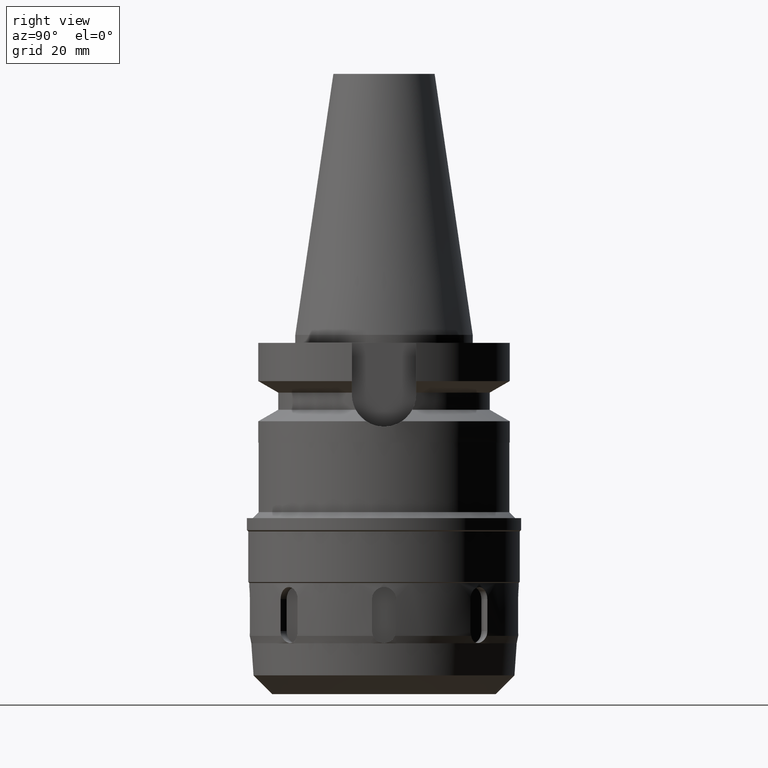
[diagram: clean part render]
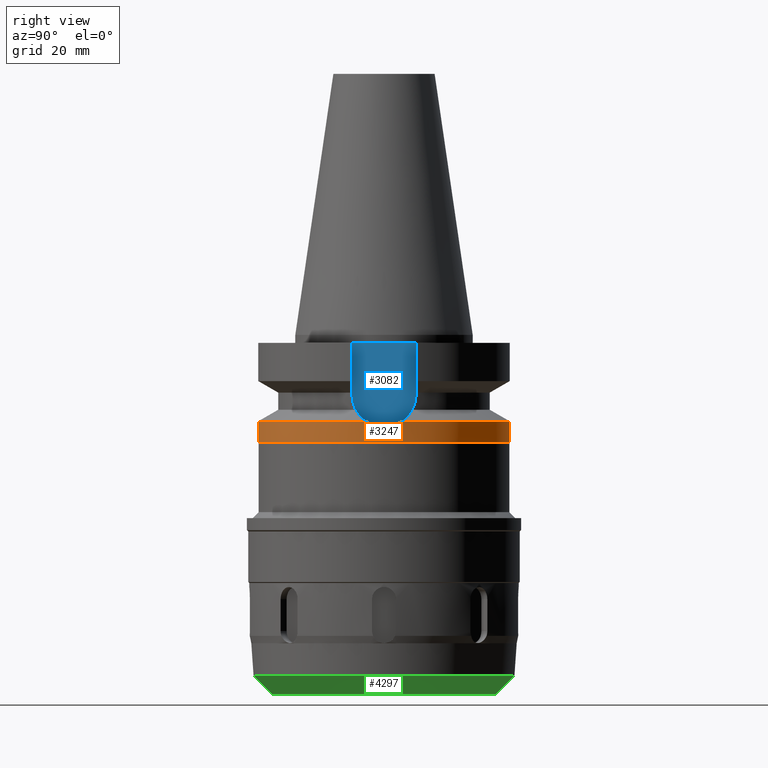
[diagram: same view with three faces highlighted in distinct colors, each labeled with its STEP entity id]
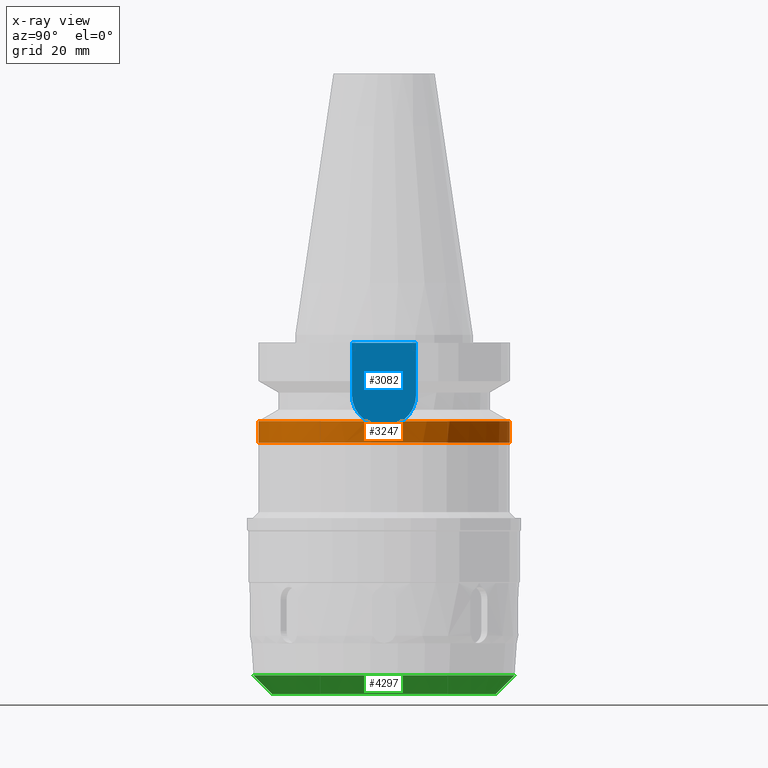
[diagram: x-ray of the same camera — body ghosted, the three highlighted faces saturated]
A machine part, right view with three faces highlighted in distinct colors.
The next image is the same camera in x-ray (body ghosted, the three faces saturated) — at least one of them is partly hidden behind the body in this view.
Their STEP definitions:

[orange] entity #3247 — the highlighted cylindrical surface (partial cylindrical patch) has radius 31.5 mm, axis along (0, 0, -1).
#498=CARTESIAN_POINT('',(0.E0,0.E0,-2.163449434733E1));
#499=DIRECTION('',(0.E0,0.E0,-1.E0));
#500=DIRECTION('',(9.898094849553E-1,-1.423979757319E-1,0.E0));
#501=AXIS2_PLACEMENT_3D('',#498,#499,#500);
#540=CARTESIAN_POINT('',(3.117899877609E1,-4.485536235554E0,-2.163449434733E1));
#541=CARTESIAN_POINT('',(3.124368763885E1,-4.035883425560E0,-2.193622756272E1));
#542=CARTESIAN_POINT('',(3.135874382981E1,-3.100355133071E0,-2.243554538910E1));
#543=CARTESIAN_POINT('',(3.147361120250E1,-1.571038160430E0,-2.289772962882E1));
#544=CARTESIAN_POINT('',(3.150000030227E1,-5.301930198635E-1,
-2.300000138149E1));
#545=CARTESIAN_POINT('',(3.150000030227E1,4.147445259395E-14,
-2.300000138149E1));
#550=CARTESIAN_POINT('',(3.150000030227E1,4.147445259395E-14,
-2.300000138149E1));
#551=CARTESIAN_POINT('',(3.150000030227E1,5.302393167219E-1,-2.300000138149E1));
#552=CARTESIAN_POINT('',(3.147360647208E1,1.571145545670E0,-2.289771109817E1));
#553=CARTESIAN_POINT('',(3.135873342942E1,3.100451489199E0,-2.243550222151E1));
#554=CARTESIAN_POINT('',(3.124368229242E1,4.035920588603E0,-2.193620262498E1));
#555=CARTESIAN_POINT('',(3.117899877609E1,4.485536235554E0,-2.163449434733E1));
#560=DIRECTION('',(0.E0,1.099151708819E-13,-1.E0));
#561=VECTOR('',#560,5.365505652669E0);
#562=CARTESIAN_POINT('',(0.E0,3.15E1,-2.163449434733E1));
#563=LINE('',#562,#561);
#575=CARTESIAN_POINT('',(0.E0,0.E0,-2.163449434733E1));
#576=DIRECTION('',(0.E0,0.E0,-1.E0));
#577=DIRECTION('',(0.E0,1.E0,0.E0));
#578=AXIS2_PLACEMENT_3D('',#575,#576,#577);
#623=DIRECTION('',(0.E0,-1.105773104655E-13,-1.E0));
#624=VECTOR('',#623,5.365505652669E0);
#625=CARTESIAN_POINT('',(0.E0,-3.15E1,-2.163449434733E1));
#626=LINE('',#625,#624);
#630=CARTESIAN_POINT('',(0.E0,2.120720862083E-14,-2.7E1));
#631=DIRECTION('',(0.E0,0.E0,1.E0));
#632=DIRECTION('',(0.E0,-1.E0,0.E0));
#633=AXIS2_PLACEMENT_3D('',#630,#631,#632);
#2700=CARTESIAN_POINT('',(0.E0,-3.15E1,-2.7E1));
#2701=CARTESIAN_POINT('',(0.E0,3.15E1,-2.7E1));
#2702=VERTEX_POINT('',#2700);
#2703=VERTEX_POINT('',#2701);
#2704=VERTEX_POINT('',#550);
#2705=VERTEX_POINT('',#555);
#2706=VERTEX_POINT('',#540);
#2707=CARTESIAN_POINT('',(0.E0,3.15E1,-2.163449434733E1));
#2708=VERTEX_POINT('',#2707);
#2709=CARTESIAN_POINT('',(0.E0,-3.15E1,-2.163449434733E1));
#2710=VERTEX_POINT('',#2709);
#3229=CARTESIAN_POINT('',(0.E0,2.120720862083E-14,7.317E1));
#3230=DIRECTION('',(0.E0,0.E0,-1.E0));
#3231=DIRECTION('',(0.E0,-1.E0,0.E0));
#3232=AXIS2_PLACEMENT_3D('',#3229,#3230,#3231);
#3233=CYLINDRICAL_SURFACE('',#3232,3.15E1);
#3234=ORIENTED_EDGE('',*,*,#3215,.T.);
#3235=ORIENTED_EDGE('',*,*,#3213,.T.);
#3237=ORIENTED_EDGE('',*,*,#3236,.F.);
#3239=ORIENTED_EDGE('',*,*,#3238,.T.);
#3241=ORIENTED_EDGE('',*,*,#3240,.F.);
#3243=ORIENTED_EDGE('',*,*,#3242,.F.);
#3244=ORIENTED_EDGE('',*,*,#3201,.F.);
#3245=EDGE_LOOP('',(#3234,#3235,#3237,#3239,#3241,#3243,#3244));
#3246=FACE_OUTER_BOUND('',#3245,.F.);
#502=CIRCLE('',#501,3.15E1);
#546=B_SPLINE_CURVE_WITH_KNOTS('',3,(#540,#541,#542,#543,#544,#545),
.UNSPECIFIED.,.F.,.F.,(4,1,1,4),(0.E0,3.333333333333E-1,6.666666666667E-1,1.E0),
.UNSPECIFIED.);
#556=B_SPLINE_CURVE_WITH_KNOTS('',3,(#550,#551,#552,#553,#554,#555),
.UNSPECIFIED.,.F.,.F.,(4,1,1,4),(0.E0,3.333333333333E-1,6.666666666667E-1,1.E0),
.UNSPECIFIED.);
#579=CIRCLE('',#578,3.15E1);
#634=CIRCLE('',#633,3.15E1);
#3201=EDGE_CURVE('',#2706,#2710,#502,.T.);
#3213=EDGE_CURVE('',#2704,#2705,#556,.T.);
#3215=EDGE_CURVE('',#2706,#2704,#546,.T.);
#3236=EDGE_CURVE('',#2708,#2705,#579,.T.);
#3238=EDGE_CURVE('',#2708,#2703,#563,.T.);
#3240=EDGE_CURVE('',#2702,#2703,#634,.T.);
#3242=EDGE_CURVE('',#2710,#2702,#626,.T.);
#3247=ADVANCED_FACE('',(#3246),#3233,.T.);

[blue] entity #3082 — the highlighted planar face has unit normal (1, 0, 0).
#124=DIRECTION('',(0.E0,-1.E0,0.E0));
#125=VECTOR('',#124,1.61E1);
#126=CARTESIAN_POINT('',(2.25E1,8.05E0,-2.E0));
#127=LINE('',#126,#125);
#307=DIRECTION('',(0.E0,0.E0,-1.E0));
#308=VECTOR('',#307,1.295E1);
#309=CARTESIAN_POINT('',(2.25E1,8.05E0,-2.E0));
#310=LINE('',#309,#308);
#314=CARTESIAN_POINT('',(2.25E1,0.E0,-1.495E1));
#315=DIRECTION('',(-1.E0,0.E0,0.E0));
#316=DIRECTION('',(0.E0,1.E0,0.E0));
#317=AXIS2_PLACEMENT_3D('',#314,#315,#316);
#322=CARTESIAN_POINT('',(2.25E1,0.E0,-1.495E1));
#323=DIRECTION('',(-1.E0,0.E0,0.E0));
#324=DIRECTION('',(0.E0,0.E0,-1.E0));
#325=AXIS2_PLACEMENT_3D('',#322,#323,#324);
#330=DIRECTION('',(0.E0,0.E0,1.E0));
#331=VECTOR('',#330,1.295E1);
#332=CARTESIAN_POINT('',(2.25E1,-8.05E0,-1.495E1));
#333=LINE('',#332,#331);
#2713=CARTESIAN_POINT('',(2.25E1,-8.05E0,-1.495E1));
#2714=VERTEX_POINT('',#2713);
#2715=CARTESIAN_POINT('',(2.25E1,0.E0,-2.3E1));
#2716=VERTEX_POINT('',#2715);
#2717=CARTESIAN_POINT('',(2.25E1,8.05E0,-1.495E1));
#2718=VERTEX_POINT('',#2717);
#2765=CARTESIAN_POINT('',(2.25E1,8.05E0,-2.E0));
#2766=VERTEX_POINT('',#2765);
#2767=CARTESIAN_POINT('',(2.25E1,-8.05E0,-2.E0));
#2768=VERTEX_POINT('',#2767);
#3067=CARTESIAN_POINT('',(2.25E1,0.E0,0.E0));
#3068=DIRECTION('',(1.E0,0.E0,0.E0));
#3069=DIRECTION('',(0.E0,0.E0,-1.E0));
#3070=AXIS2_PLACEMENT_3D('',#3067,#3068,#3069);
#3071=PLANE('',#3070);
#3072=ORIENTED_EDGE('',*,*,#2944,.F.);
#3074=ORIENTED_EDGE('',*,*,#3073,.T.);
#3076=ORIENTED_EDGE('',*,*,#3075,.T.);
#3078=ORIENTED_EDGE('',*,*,#3077,.T.);
#3079=ORIENTED_EDGE('',*,*,#3060,.T.);
#3080=EDGE_LOOP('',(#3072,#3074,#3076,#3078,#3079));
#3081=FACE_OUTER_BOUND('',#3080,.F.);
#318=CIRCLE('',#317,8.05E0);
#326=CIRCLE('',#325,8.05E0);
#2944=EDGE_CURVE('',#2766,#2768,#127,.T.);
#3060=EDGE_CURVE('',#2714,#2768,#333,.T.);
#3073=EDGE_CURVE('',#2766,#2718,#310,.T.);
#3075=EDGE_CURVE('',#2718,#2716,#318,.T.);
#3077=EDGE_CURVE('',#2716,#2714,#326,.T.);
#3082=ADVANCED_FACE('',(#3081),#3071,.T.);

[green] entity #4297 — the highlighted conical surface has half-angle 45 deg.
#2136=DIRECTION('',(0.E0,7.071067811864E-1,-7.071067811867E-1));
#2137=VECTOR('',#2136,6.628418966842E0);
#2138=CARTESIAN_POINT('',(0.E0,-3.2687E1,-8.5313E1));
#2139=LINE('',#2138,#2137);
#2143=DIRECTION('',(0.E0,-7.071067811864E-1,-7.071067811867E-1));
#2144=VECTOR('',#2143,6.628418966842E0);
#2145=CARTESIAN_POINT('',(0.E0,3.2687E1,-8.5313E1));
#2146=LINE('',#2145,#2144);
#2150=CARTESIAN_POINT('',(0.E0,0.E0,-8.5313E1));
#2151=DIRECTION('',(0.E0,0.E0,1.E0));
#2152=DIRECTION('',(0.E0,-1.E0,0.E0));
#2153=AXIS2_PLACEMENT_3D('',#2150,#2151,#2152);
#2158=CARTESIAN_POINT('',(0.E0,0.E0,-9.E1));
#2159=DIRECTION('',(0.E0,0.E0,1.E0));
#2160=DIRECTION('',(0.E0,-1.E0,0.E0));
#2161=AXIS2_PLACEMENT_3D('',#2158,#2159,#2160);
#2546=CARTESIAN_POINT('',(0.E0,-2.8E1,-9.E1));
#2547=CARTESIAN_POINT('',(0.E0,2.8E1,-9.E1));
#2548=VERTEX_POINT('',#2546);
#2549=VERTEX_POINT('',#2547);
#2550=CARTESIAN_POINT('',(0.E0,3.2687E1,-8.5313E1));
#2551=VERTEX_POINT('',#2550);
#2552=CARTESIAN_POINT('',(0.E0,-3.2687E1,-8.5313E1));
#2553=VERTEX_POINT('',#2552);
#4285=CARTESIAN_POINT('',(0.E0,0.E0,-8.76565E1));
#4286=DIRECTION('',(0.E0,0.E0,1.E0));
#4287=DIRECTION('',(0.E0,1.E0,0.E0));
#4288=AXIS2_PLACEMENT_3D('',#4285,#4286,#4287);
#4289=CONICAL_SURFACE('',#4288,3.03435E1,4.5E1);
#4290=ORIENTED_EDGE('',*,*,#4275,.T.);
#4292=ORIENTED_EDGE('',*,*,#4291,.F.);
#4293=ORIENTED_EDGE('',*,*,#4278,.F.);
#4294=ORIENTED_EDGE('',*,*,#4249,.T.);
#4295=EDGE_LOOP('',(#4290,#4292,#4293,#4294));
#4296=FACE_OUTER_BOUND('',#4295,.F.);
#2154=CIRCLE('',#2153,3.2687E1);
#2162=CIRCLE('',#2161,2.8E1);
#4249=EDGE_CURVE('',#2553,#2551,#2154,.T.);
#4275=EDGE_CURVE('',#2551,#2549,#2146,.T.);
#4278=EDGE_CURVE('',#2553,#2548,#2139,.T.);
#4291=EDGE_CURVE('',#2548,#2549,#2162,.T.);
#4297=ADVANCED_FACE('',(#4296),#4289,.T.);